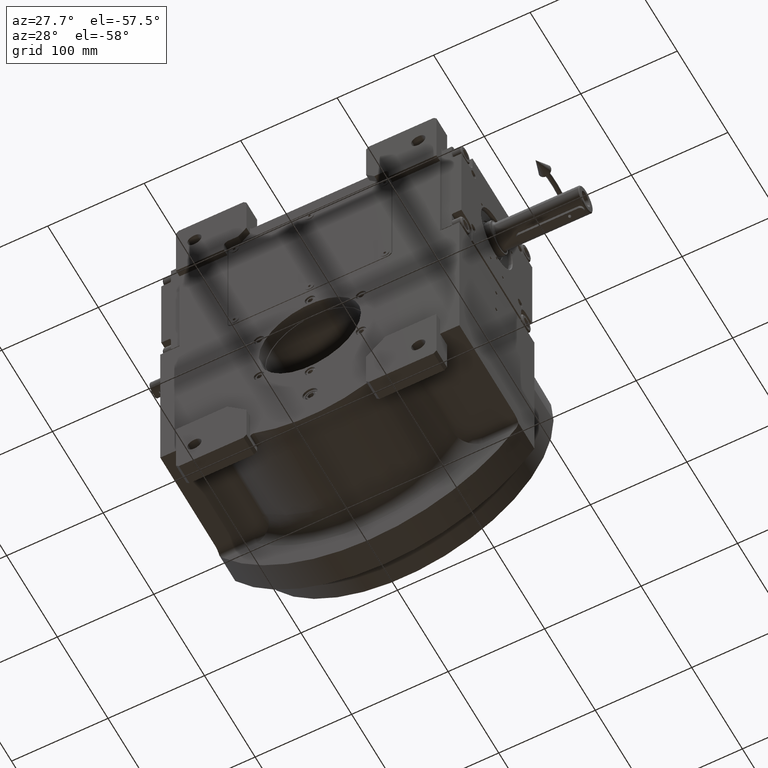
[diagram: clean part render]
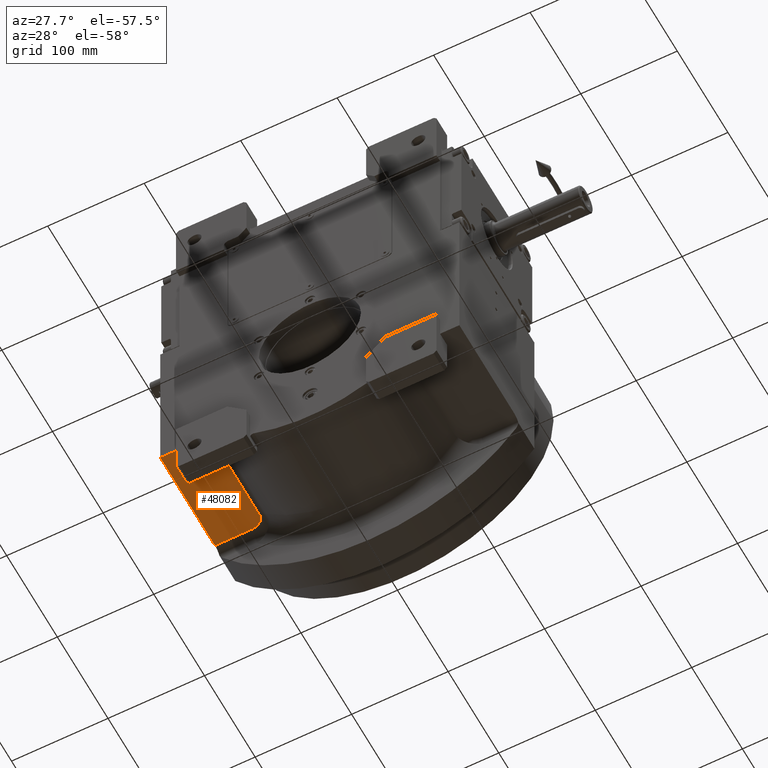
[diagram: same view with one face highlighted and labeled with its STEP entity id]
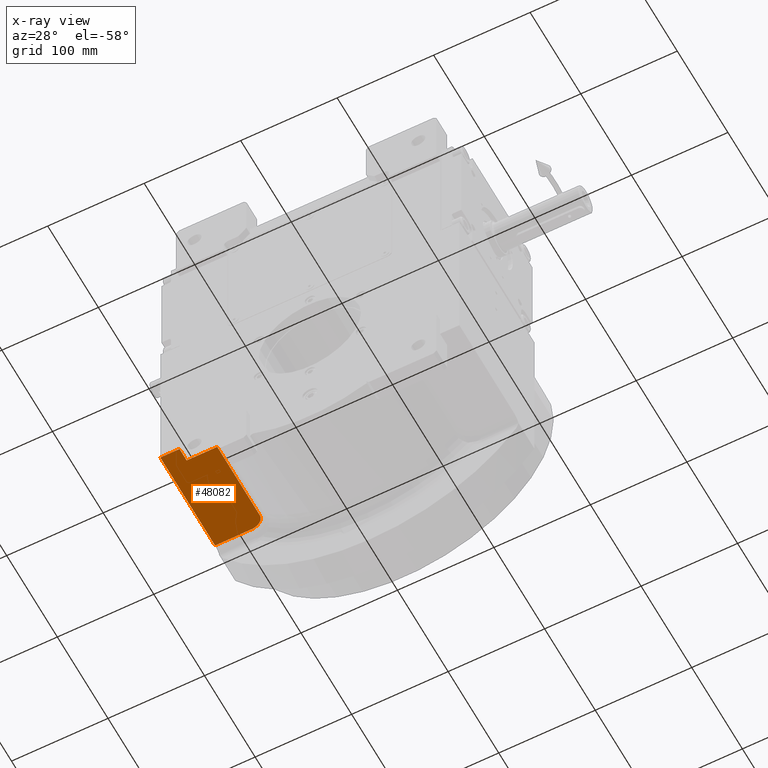
[diagram: x-ray of the same camera — body ghosted, the highlighted face saturated]
A machine part, auxiliary view. The second image highlights one B-rep face of the part: STEP entity #48082.
The next image is the same camera in x-ray: the body ghosted, the highlighted face saturated — about 0% of this face is hidden behind the body in this view.
In plain terms, the highlighted planar face has unit normal (0, 0, 1).
Its self-contained STEP definition (entity closure, byte-faithful):
#1535 = CARTESIAN_POINT ( 'NONE',  ( -135.0000000000000000, -73.00000000000000000, -96.00000000000000000 ) ) ;
#2021 = VERTEX_POINT ( 'NONE', #4183 ) ;
#2826 = EDGE_CURVE ( 'NONE', #35863, #12152, #24199, .T. ) ;
#2995 = DIRECTION ( 'NONE',  ( 0.000000000000000000, 1.000000000000000000, 0.000000000000000000 ) ) ;
#3327 = EDGE_LOOP ( 'NONE', ( #48153, #10476, #32345, #24383, #37147, #7207, #20960 ) ) ;
#3645 = VECTOR ( 'NONE', #40366, 1000.000000000000000 ) ;
#4183 = CARTESIAN_POINT ( 'NONE',  ( -103.2860106693999995, 25.00000000000000000, -96.00000000043000625 ) ) ;
#7207 = ORIENTED_EDGE ( 'NONE', *, *, #2826, .T. ) ;
#10476 = ORIENTED_EDGE ( 'NONE', *, *, #12287, .F. ) ;
#11551 = LINE ( 'NONE', #21478, #45313 ) ;
#12152 = VERTEX_POINT ( 'NONE', #27589 ) ;
#12287 = EDGE_CURVE ( 'NONE', #28655, #2021, #28293, .T. ) ;
#13368 = CARTESIAN_POINT ( 'NONE',  ( -110.9116466137000003, 33.99044055579000201, -96.00000000000000000 ) ) ;
#16552 = VECTOR ( 'NONE', #2995, 1000.000000000000000 ) ;
#16888 = DIRECTION ( 'NONE',  ( -1.000000000000000000, 0.000000000000000000, 1.275967988055000138E-12 ) ) ;
#18877 = LINE ( 'NONE', #60822, #3645 ) ;
#19055 = DIRECTION ( 'NONE',  ( 1.000000000000000000, 0.000000000000000000, 0.000000000000000000 ) ) ;
#19591 = VECTOR ( 'NONE', #49769, 1000.000000000000000 ) ;
#20960 = ORIENTED_EDGE ( 'NONE', *, *, #53265, .F. ) ;
#21478 = CARTESIAN_POINT ( 'NONE',  ( -135.0000000000000000, -73.00000000000000000, -96.00000000000000000 ) ) ;
#24199 = LINE ( 'NONE', #46379, #16552 ) ;
#24248 = AXIS2_PLACEMENT_3D ( 'NONE', #40196, #61703, #19055 ) ;
#24383 = ORIENTED_EDGE ( 'NONE', *, *, #35551, .F. ) ;
#24394 = CARTESIAN_POINT ( 'NONE',  ( -103.2860106693999995, -59.00000000000000000, -96.00000000000000000 ) ) ;
#24683 = CARTESIAN_POINT ( 'NONE',  ( -135.0000000000000000, -59.00000000000000000, -96.00000000000000000 ) ) ;
#25356 = DIRECTION ( 'NONE',  ( 0.000000000000000000, 1.000000000000000000, 0.000000000000000000 ) ) ;
#25898 = VECTOR ( 'NONE', #25356, 1000.000000000000000 ) ;
#26045 = LINE ( 'NONE', #31674, #25898 ) ;
#26240 = CARTESIAN_POINT ( 'NONE',  ( -117.1665481269999987, 35.00000000000000000, -96.00000000005000800 ) ) ;
#27589 = CARTESIAN_POINT ( 'NONE',  ( -155.0000000000000000, 35.00000000000000000, -96.00000000000000000 ) ) ;
#28293 = LINE ( 'NONE', #24394, #19591 ) ;
#28655 = VERTEX_POINT ( 'NONE', #29632 ) ;
#29174 = CARTESIAN_POINT ( 'NONE',  ( -155.0000000000000000, -73.00000000000000000, -96.00000000000000000 ) ) ;
#29632 = CARTESIAN_POINT ( 'NONE',  ( -103.2860106693999995, -59.00000000000000000, -96.00000000000000000 ) ) ;
#31674 = CARTESIAN_POINT ( 'NONE',  ( -135.0000000000000000, -73.00000000000000000, -96.00000000000000000 ) ) ;
#32345 = ORIENTED_EDGE ( 'NONE', *, *, #45698, .T. ) ;
#33013 = EDGE_CURVE ( 'NONE', #2021, #34225, #59949, .T. ) ;
#34205 = CARTESIAN_POINT ( 'NONE',  ( -106.0180855288000004, 31.02743696129000028, -95.99999999998999556 ) ) ;
#34225 = VERTEX_POINT ( 'NONE', #26240 ) ;
#34555 = CARTESIAN_POINT ( 'NONE',  ( -117.1665481269999987, 35.00000000000000000, -96.00000000005000800 ) ) ;
#35551 = EDGE_CURVE ( 'NONE', #55487, #68478, #26045, .T. ) ;
#35863 = VERTEX_POINT ( 'NONE', #29174 ) ;
#37147 = ORIENTED_EDGE ( 'NONE', *, *, #43719, .T. ) ;
#40196 = CARTESIAN_POINT ( 'NONE',  ( -99.13626985114999002, -73.00000000000000000, -96.00000000000000000 ) ) ;
#40366 = DIRECTION ( 'NONE',  ( -1.000000000000000000, 0.000000000000000000, 0.000000000000000000 ) ) ;
#40892 = PLANE ( 'NONE',  #24248 ) ;
#43719 = EDGE_CURVE ( 'NONE', #55487, #35863, #11551, .T. ) ;
#45313 = VECTOR ( 'NONE', #49296, 1000.000000000000000 ) ;
#45466 = CARTESIAN_POINT ( 'NONE',  ( -104.4363569245000036, 29.12958665557999893, -96.00000000005000800 ) ) ;
#45698 = EDGE_CURVE ( 'NONE', #28655, #68478, #18877, .T. ) ;
#45845 = FACE_OUTER_BOUND ( 'NONE', #3327, .T. ) ;
#46379 = CARTESIAN_POINT ( 'NONE',  ( -155.0000000000000000, -73.00000000000000000, -96.00000000000000000 ) ) ;
#48082 = ADVANCED_FACE ( 'NONE', ( #45845 ), #40892, .F. ) ;
#48153 = ORIENTED_EDGE ( 'NONE', *, *, #33013, .F. ) ;
#49296 = DIRECTION ( 'NONE',  ( -1.000000000000000000, 0.000000000000000000, 0.000000000000000000 ) ) ;
#49663 = CARTESIAN_POINT ( 'NONE',  ( -117.1665481269999987, 35.00000000000000000, -96.00000000005000800 ) ) ;
#49769 = DIRECTION ( 'NONE',  ( 0.000000000000000000, 1.000000000000000000, -5.118952880626000029E-12 ) ) ;
#50413 = CARTESIAN_POINT ( 'NONE',  ( -116.0839805340000055, 34.99993937030999547, -96.00000000005000800 ) ) ;
#50519 = VECTOR ( 'NONE', #16888, 1000.000000000000000 ) ;
#50744 = CARTESIAN_POINT ( 'NONE',  ( -108.2151598691000061, 32.69630108120999523, -96.00000000000000000 ) ) ;
#53265 = EDGE_CURVE ( 'NONE', #34225, #12152, #65534, .T. ) ;
#55487 = VERTEX_POINT ( 'NONE', #1535 ) ;
#55679 = CARTESIAN_POINT ( 'NONE',  ( -113.9797611788999916, 34.81356368033999615, -95.99999999997999112 ) ) ;
#59949 = B_SPLINE_CURVE_WITH_KNOTS ( 'NONE', 3,
 ( #61679, #66288, #62031, #45466, #34205, #50744, #13368, #55679, #50413, #34555 ),
 .UNSPECIFIED., .F., .F.,
 ( 4, 1, 1, 1, 1, 1, 1, 4 ),
 ( 0.000000000000000000, 0.1428571428570999946, 0.2857142857143000203, 0.4285714285713999594, 0.5714285714286000406, 0.7142857142856999797, 0.8571428571429000609, 1.000000000000000000 ),
 .UNSPECIFIED. ) ;
#60822 = CARTESIAN_POINT ( 'NONE',  ( -103.2860106693999995, -59.00000000000000000, -96.00000000000000000 ) ) ;
#61679 = CARTESIAN_POINT ( 'NONE',  ( -103.2860106693999995, 25.00000000000000000, -96.00000000043000625 ) ) ;
#61703 = DIRECTION ( 'NONE',  ( 0.000000000000000000, 0.000000000000000000, 1.000000000000000000 ) ) ;
#62031 = CARTESIAN_POINT ( 'NONE',  ( -103.4773096649000053, 27.03819902675000009, -95.99999999979999643 ) ) ;
#65534 = LINE ( 'NONE', #49663, #50519 ) ;
#66288 = CARTESIAN_POINT ( 'NONE',  ( -103.2864124907000019, 25.68234486242999992, -96.00000000043000625 ) ) ;
#68478 = VERTEX_POINT ( 'NONE', #24683 ) ;